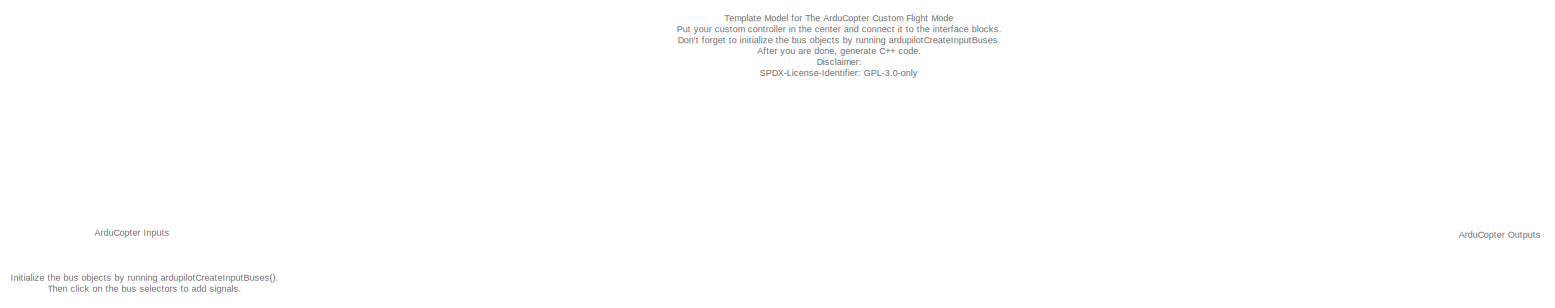
[diagram: root canvas - part 1/3, full width, top band]
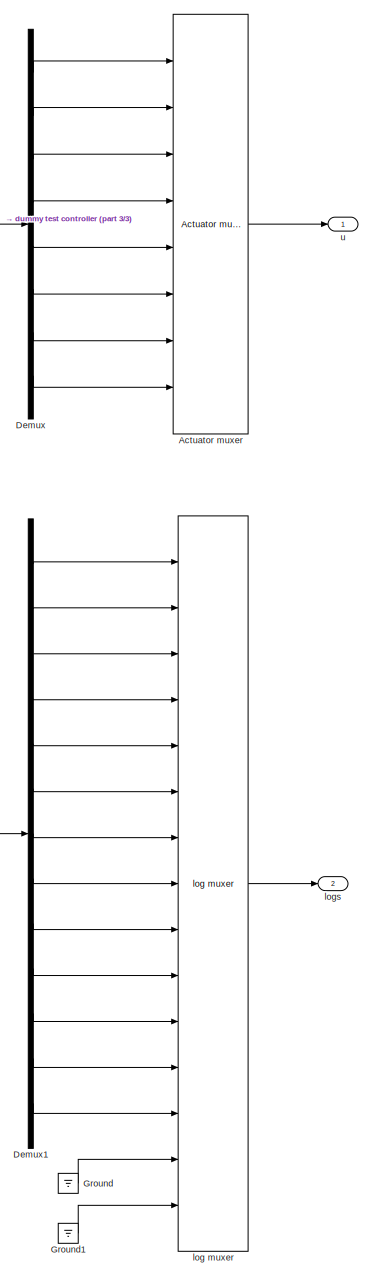
[diagram: root canvas - part 2/3, right side, full height]
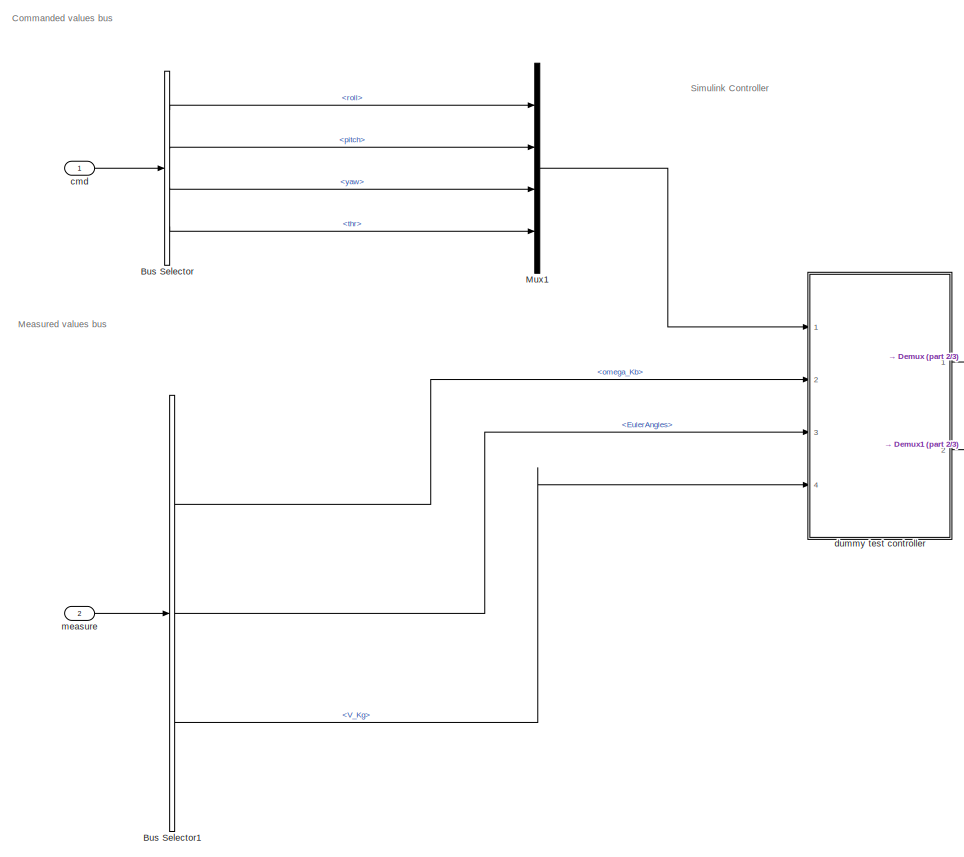
[diagram: root canvas - part 3/3, central region]
MODEL slx_c60d55fd083f
KIND model
CONFIG AbsTol = auto
CONFIG EnableMultiTasking = on
CONFIG FixedStep = 0.01
CONFIG MaxStep = auto
CONFIG MinStep = auto
CONFIG RelTol = 1e-4
CONFIG SampleTimeConstraint = Unconstrained
CONFIG Solver = FixedStepAuto
CONFIG SolverName = FixedStepAuto
CONFIG StartTime = 0.0
CONFIG StopTime = 1000
BLOCK [Reference] Actuator muxer  REF=ardupilot_custom_controller_lib/Actuator muxer  (lib defined in slx_bbc4fb9a1307)
  Ports = [8, 1]
  SourceBlock = ardupilot_custom_controller_lib/Actuator muxer
  SourceProductName = LADAC
BLOCK [BusSelector] Bus Selector
  OutputAsBus = off
  OutputSignals = roll,pitch,yaw,thr
  Ports = [1, 4]
BLOCK [BusSelector] Bus Selector1
  OutputAsBus = off
  OutputSignals = omega_Kb,EulerAngles,V_Kg
  Ports = [1, 3]
BLOCK [Demux] Demux
  DisplayOption = bar
  Outputs = 8
  Ports = [1, 8]
BLOCK [Demux] Demux1
  DisplayOption = bar
  Outputs = 13
  Ports = [1, 13]
BLOCK [Ground] Ground
BLOCK [Ground] Ground1
BLOCK [Mux] Mux1
  DisplayOption = bar
  Ports = [4, 1]
BLOCK [Inport] cmd
  IconDisplay = Port number
  OutDataTypeStr = Bus: cmdBus
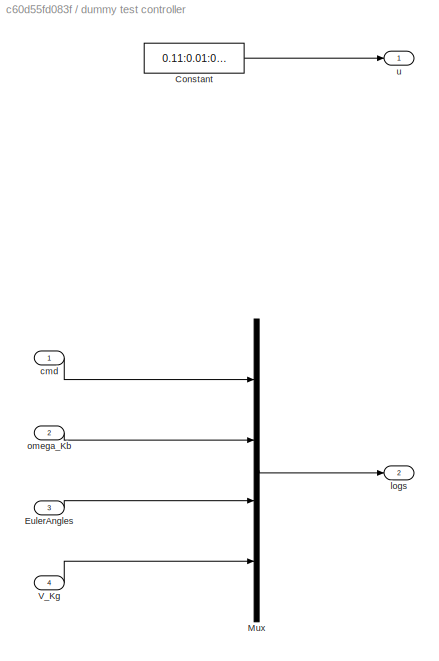
BLOCK [SubSystem] dummy test controller
  Ports = [4, 2]
  RequestExecContextInheritance = off
BLOCK [Constant] dummy test controller/Constant
  Value = 0.11:0.01:0.18
BLOCK [Inport] dummy test controller/EulerAngles
  IconDisplay = Port number
  Port = 3
BLOCK [Mux] dummy test controller/Mux
  DisplayOption = bar
  Ports = [4, 1]
BLOCK [Inport] dummy test controller/V_Kg
  IconDisplay = Port number
  Port = 4
BLOCK [Inport] dummy test controller/cmd
  IconDisplay = Port number
BLOCK [Outport] dummy test controller/logs
  IconDisplay = Port number
  Port = 2
BLOCK [Inport] dummy test controller/omega_Kb
  IconDisplay = Port number
  Port = 2
BLOCK [Outport] dummy test controller/u
  IconDisplay = Port number
BLOCK [Reference] log muxer  REF=ardupilot_custom_controller_lib/log muxer  (lib defined in slx_bbc4fb9a1307)
  Ports = [15, 1]
  SourceBlock = ardupilot_custom_controller_lib/log muxer
  SourceProductName = LADAC
BLOCK [Outport] logs
  IconDisplay = Port number
  Port = 2
BLOCK [Inport] measure
  IconDisplay = Port number
  OutDataTypeStr = Bus: measureBus
  Port = 2
BLOCK [Outport] u
  IconDisplay = Port number
ANNOTATION (root): ArduCopter Inputs
ANNOTATION (root): ArduCopter Outputs
ANNOTATION (root): Simulink Controller
ANNOTATION (root): Template Model for The ArduCopter Custom Flight Mode Put your custom controller in the center and connect it to the interface blocks. Don't forget to initialize the bus objects by running ardupilotCreateInputBuses. After you are done, generate C++ code. Disclaimer: SPDX-License-Identifier: GPL-3.0-only <copyright redacted>
ANNOTATION (root): Commanded values bus
ANNOTATION (root): Measured values bus
ANNOTATION (root): Initialize the bus objects by running ardupilotCreateInputBuses(). Then click on the bus selectors to add signals.
LINE Actuator muxer:1 -> u:1
LINE Bus Selector1:1 -> dummy test controller:2
LINE Bus Selector1:2 -> dummy test controller:3
LINE Bus Selector1:3 -> dummy test controller:4
LINE Bus Selector:1 -> Mux1:1
LINE Bus Selector:2 -> Mux1:2
LINE Bus Selector:3 -> Mux1:3
LINE Bus Selector:4 -> Mux1:4
LINE Demux1:1 -> log muxer:1
LINE Demux1:10 -> log muxer:10
LINE Demux1:11 -> log muxer:11
LINE Demux1:12 -> log muxer:12
LINE Demux1:13 -> log muxer:13
LINE Demux1:2 -> log muxer:2
LINE Demux1:3 -> log muxer:3
LINE Demux1:4 -> log muxer:4
LINE Demux1:5 -> log muxer:5
LINE Demux1:6 -> log muxer:6
LINE Demux1:7 -> log muxer:7
LINE Demux1:8 -> log muxer:8
LINE Demux1:9 -> log muxer:9
LINE Demux:1 -> Actuator muxer:1
LINE Demux:2 -> Actuator muxer:2
LINE Demux:3 -> Actuator muxer:3
LINE Demux:4 -> Actuator muxer:4
LINE Demux:5 -> Actuator muxer:5
LINE Demux:6 -> Actuator muxer:6
LINE Demux:7 -> Actuator muxer:7
LINE Demux:8 -> Actuator muxer:8
LINE Ground1:1 -> log muxer:15
LINE Ground:1 -> log muxer:14
LINE Mux1:1 -> dummy test controller:1
LINE cmd:1 -> Bus Selector:1
LINE dummy test controller/Constant:1 -> dummy test controller/u:1
LINE dummy test controller/EulerAngles:1 -> dummy test controller/Mux:3
LINE dummy test controller/Mux:1 -> dummy test controller/logs:1
LINE dummy test controller/V_Kg:1 -> dummy test controller/Mux:4
LINE dummy test controller/cmd:1 -> dummy test controller/Mux:1
LINE dummy test controller/omega_Kb:1 -> dummy test controller/Mux:2
LINE dummy test controller:1 -> Demux:1
LINE dummy test controller:2 -> Demux1:1
LINE log muxer:1 -> logs:1
LINE measure:1 -> Bus Selector1:1
